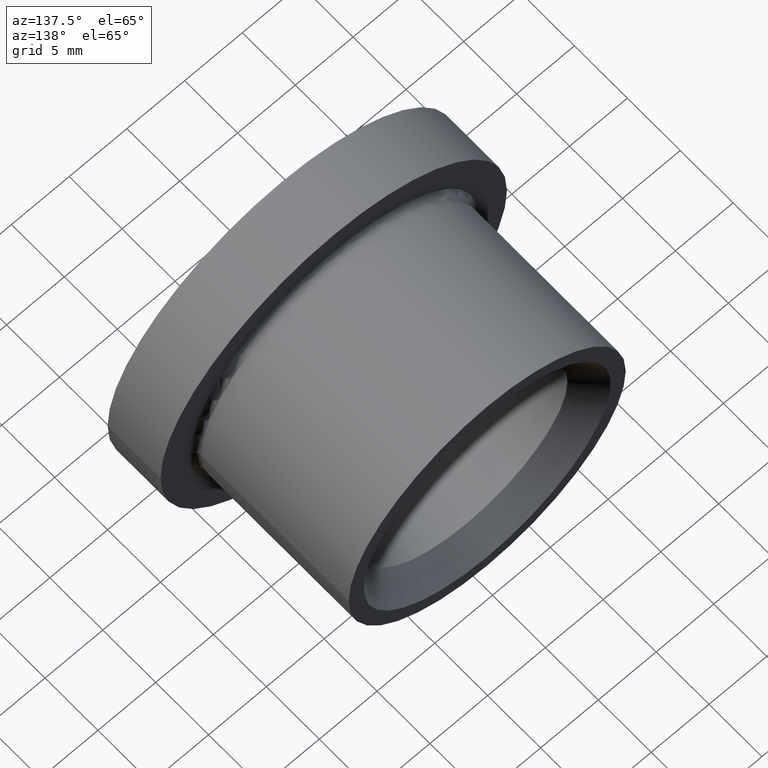
[diagram: clean part render]
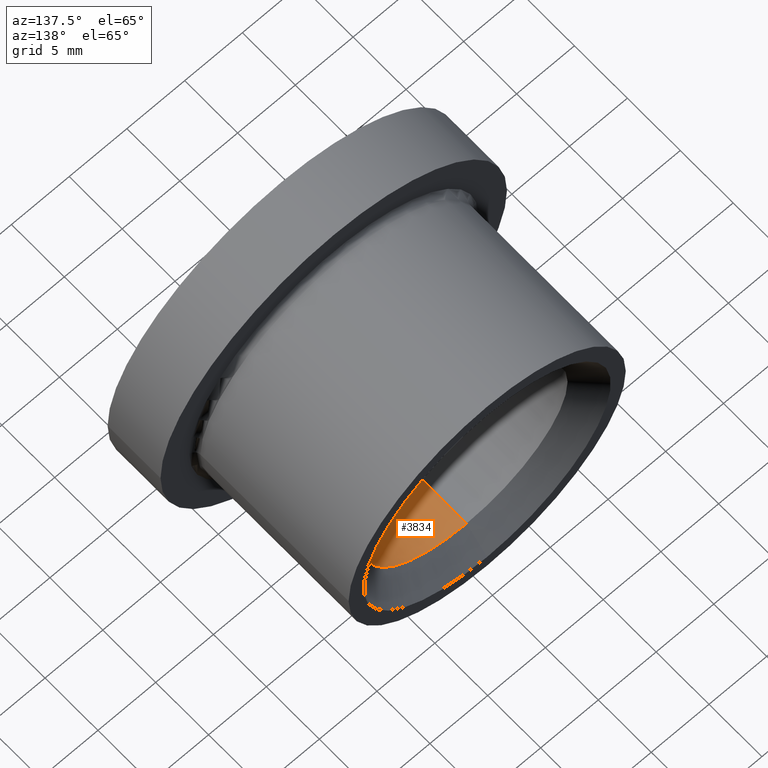
[diagram: same view with one face highlighted and labeled with its STEP entity id]
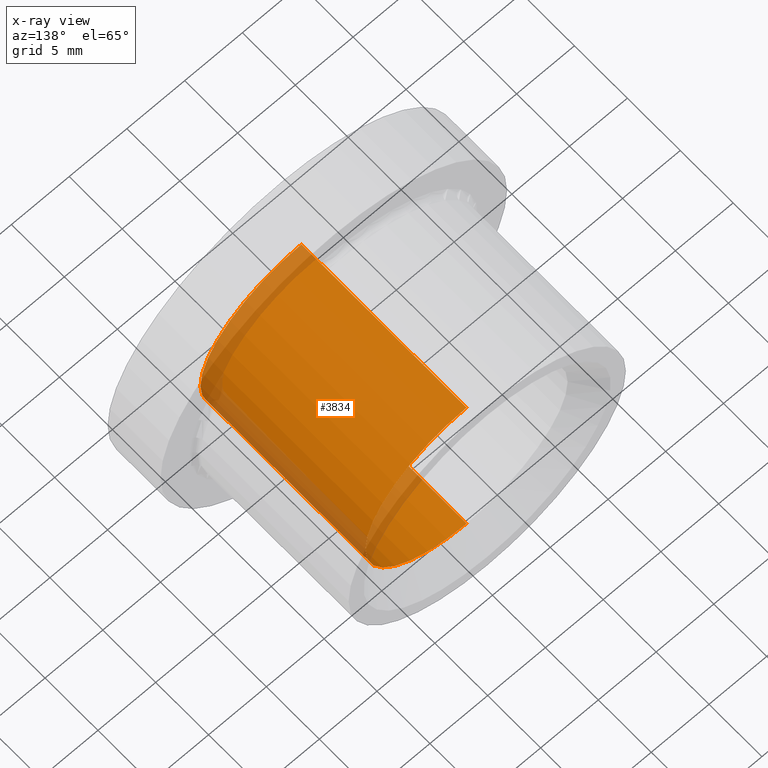
[diagram: x-ray of the same camera — body ghosted, the highlighted face saturated]
A machine part, auxiliary view. The second image highlights one B-rep face of the part: STEP entity #3834.
The next image is the same camera in x-ray: the body ghosted, the highlighted face saturated — about 19% of this face is hidden behind the body in this view.
In plain terms, the highlighted cylindrical surface (partial cylindrical patch) has radius 8.75 mm, axis along (-0, 1, -0).
Its self-contained STEP definition (entity closure, byte-faithful):
#330 = DIRECTION ( 'NONE',  ( 0.0000000000000000000, 0.0000000000000000000, 1.000000000000000000 ) ) ;
#497 = EDGE_CURVE ( 'NONE', #753, #6644, #11352, .T. ) ;
#753 = VERTEX_POINT ( 'NONE', #12322 ) ;
#1480 = DIRECTION ( 'NONE',  ( -0.0000000000000000000, 1.000000000000000000, -0.0000000000000000000 ) ) ;
#1568 = AXIS2_PLACEMENT_3D ( 'NONE', #9753, #10721, #4710 ) ;
#1781 = VERTEX_POINT ( 'NONE', #2152 ) ;
#2152 = CARTESIAN_POINT ( 'NONE',  ( 5.786456125971234200E-016, 1.950000000000003700, 8.749999999999996400 ) ) ;
#2478 = DIRECTION ( 'NONE',  ( 0.0000000000000000000, 0.0000000000000000000, 1.000000000000000000 ) ) ;
#2664 = ORIENTED_EDGE ( 'NONE', *, *, #497, .F. ) ;
#3532 = ORIENTED_EDGE ( 'NONE', *, *, #5684, .T. ) ;
#3834 = ADVANCED_FACE ( 'NONE', ( #8178 ), #10853, .F. ) ;
#4567 = CARTESIAN_POINT ( 'NONE',  ( -6.123233995736770200E-016, 19.50000000000000400, 0.0000000000000000000 ) ) ;
#4577 = VERTEX_POINT ( 'NONE', #5295 ) ;
#4658 = CIRCLE ( 'NONE', #1568, 8.749999999999998200 ) ;
#4710 = DIRECTION ( 'NONE',  ( 0.0000000000000000000, 0.0000000000000000000, 1.000000000000000000 ) ) ;
#5205 = ORIENTED_EDGE ( 'NONE', *, *, #7977, .F. ) ;
#5295 = CARTESIAN_POINT ( 'NONE',  ( -6.123233995736770200E-016, 17.55000000000000800, 8.749999999999998200 ) ) ;
#5684 = EDGE_CURVE ( 'NONE', #1781, #4577, #9812, .T. ) ;
#6421 = CARTESIAN_POINT ( 'NONE',  ( 4.592425496802568100E-016, 17.55000000000000800, -8.749999999999998200 ) ) ;
#6644 = VERTEX_POINT ( 'NONE', #6421 ) ;
#6684 = VECTOR ( 'NONE', #10156, 1000.000000000000000 ) ;
#6774 = DIRECTION ( 'NONE',  ( -0.0000000000000000000, 1.000000000000000000, -0.0000000000000000000 ) ) ;
#7147 = CIRCLE ( 'NONE', #12408, 8.749999999999996400 ) ;
#7286 = DIRECTION ( 'NONE',  ( -0.0000000000000000000, 1.000000000000000000, -0.0000000000000000000 ) ) ;
#7977 = EDGE_CURVE ( 'NONE', #1781, #753, #7147, .T. ) ;
#8074 = VECTOR ( 'NONE', #6774, 1000.000000000000000 ) ;
#8178 = FACE_OUTER_BOUND ( 'NONE', #11029, .T. ) ;
#8803 = EDGE_CURVE ( 'NONE', #4577, #6644, #4658, .T. ) ;
#8936 = ORIENTED_EDGE ( 'NONE', *, *, #8803, .T. ) ;
#9753 = CARTESIAN_POINT ( 'NONE',  ( -6.123233995736770200E-016, 17.55000000000000800, 0.0000000000000000000 ) ) ;
#9812 = LINE ( 'NONE', #11824, #8074 ) ;
#10156 = DIRECTION ( 'NONE',  ( -0.0000000000000000000, 1.000000000000000000, -0.0000000000000000000 ) ) ;
#10721 = DIRECTION ( 'NONE',  ( -0.0000000000000000000, 1.000000000000000000, -0.0000000000000000000 ) ) ;
#10853 = CYLINDRICAL_SURFACE ( 'NONE', #12048, 8.749999999999998200 ) ;
#11029 = EDGE_LOOP ( 'NONE', ( #2664, #5205, #3532, #8936 ) ) ;
#11213 = CARTESIAN_POINT ( 'NONE',  ( 4.592425496802568100E-016, 19.50000000000000400, -8.749999999999998200 ) ) ;
#11352 = LINE ( 'NONE', #11213, #6684 ) ;
#11824 = CARTESIAN_POINT ( 'NONE',  ( -6.123233995736770200E-016, 19.50000000000000400, 8.749999999999998200 ) ) ;
#12048 = AXIS2_PLACEMENT_3D ( 'NONE', #4567, #1480, #2478 ) ;
#12179 = CARTESIAN_POINT ( 'NONE',  ( -6.123233995736770200E-016, 1.950000000000003700, 0.0000000000000000000 ) ) ;
#12322 = CARTESIAN_POINT ( 'NONE',  ( -6.123233995736770200E-016, 1.950000000000003700, -8.749999999999996400 ) ) ;
#12408 = AXIS2_PLACEMENT_3D ( 'NONE', #12179, #7286, #330 ) ;